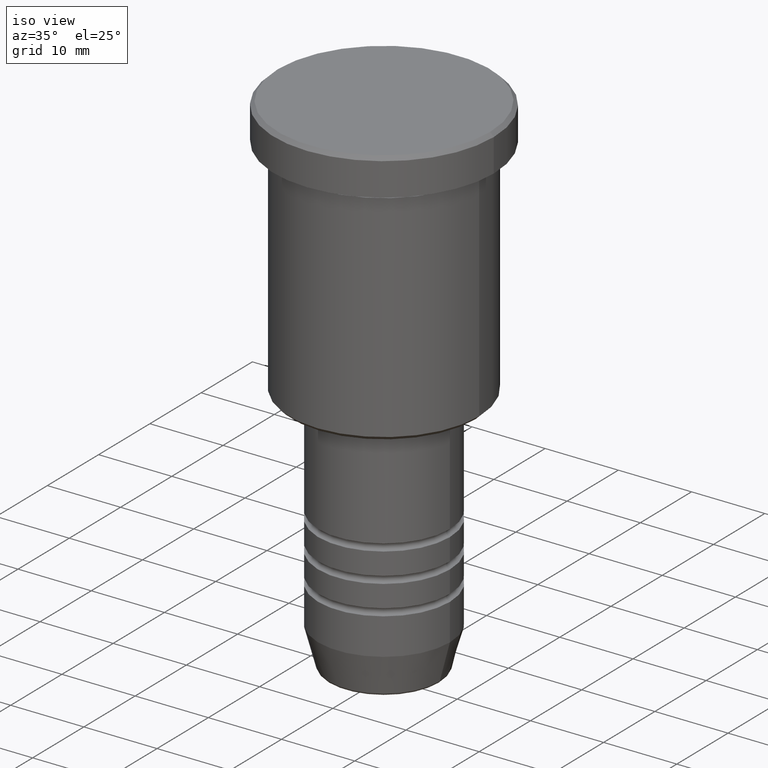
[diagram: clean part render]
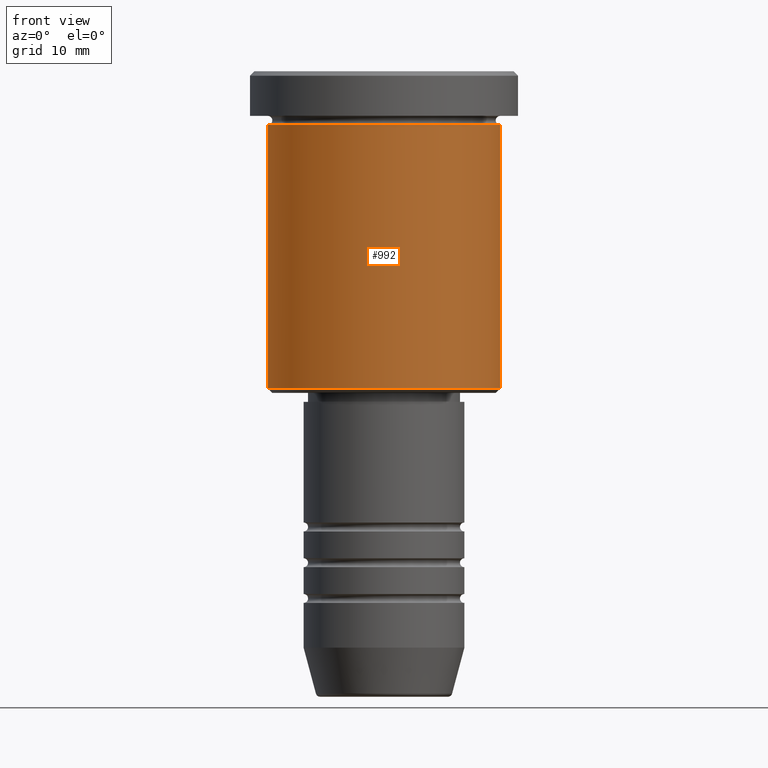
[diagram: tour spotlight — one face highlighted and labeled with its STEP entity id]
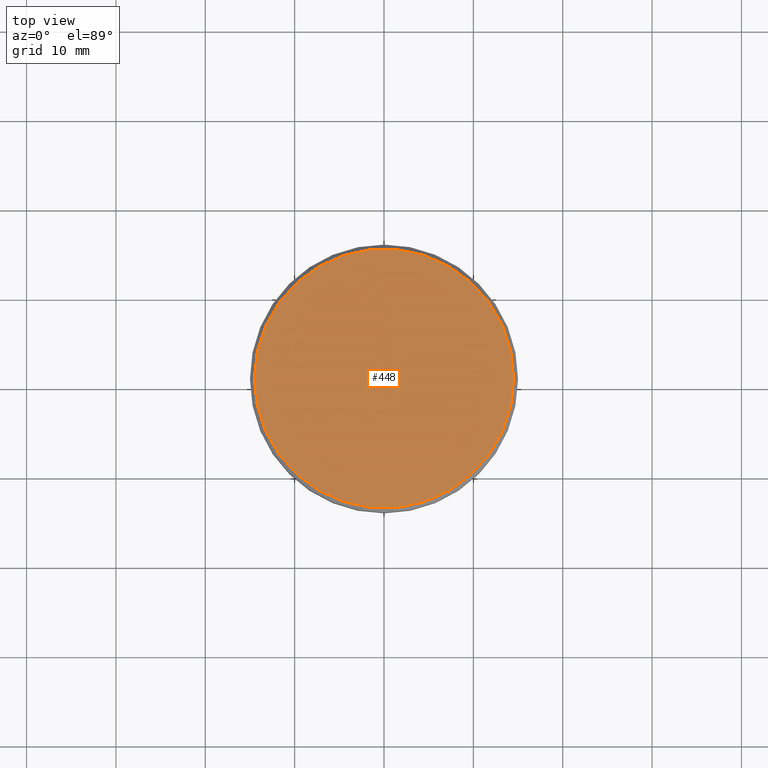
[diagram: tour spotlight — one face highlighted and labeled with its STEP entity id]
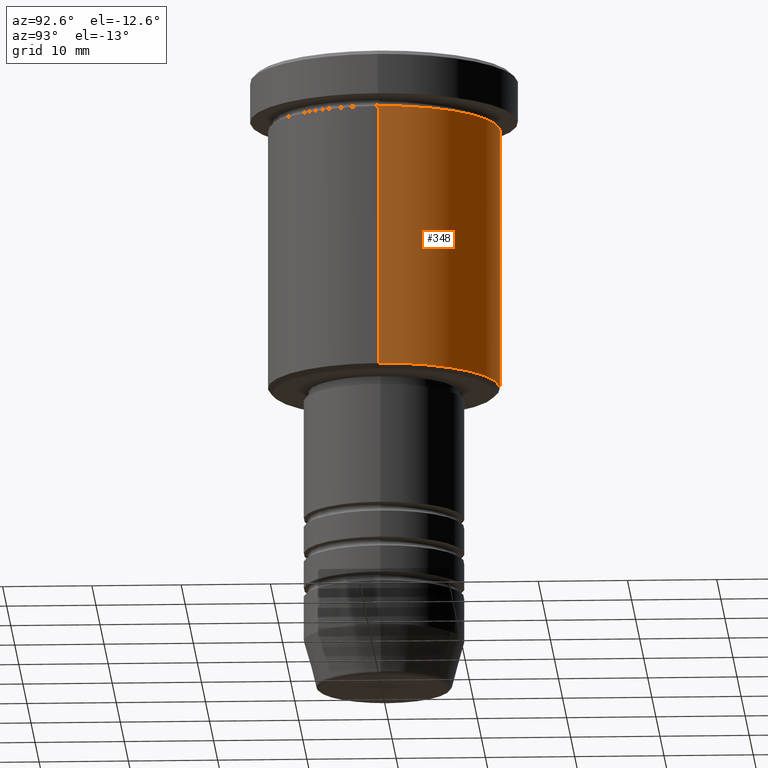
[diagram: tour spotlight — one face highlighted and labeled with its STEP entity id]
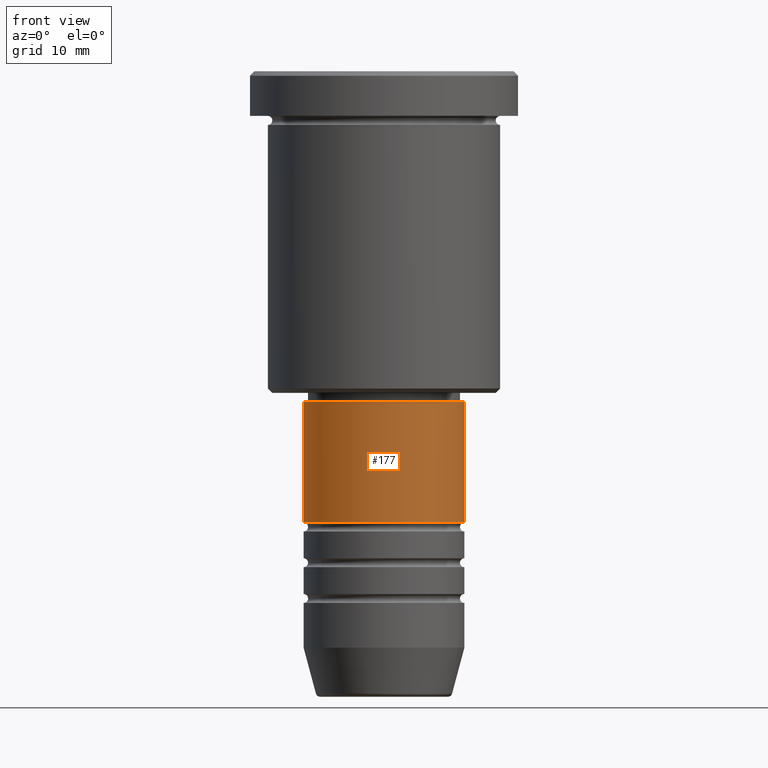
[diagram: tour spotlight — one face highlighted and labeled with its STEP entity id]
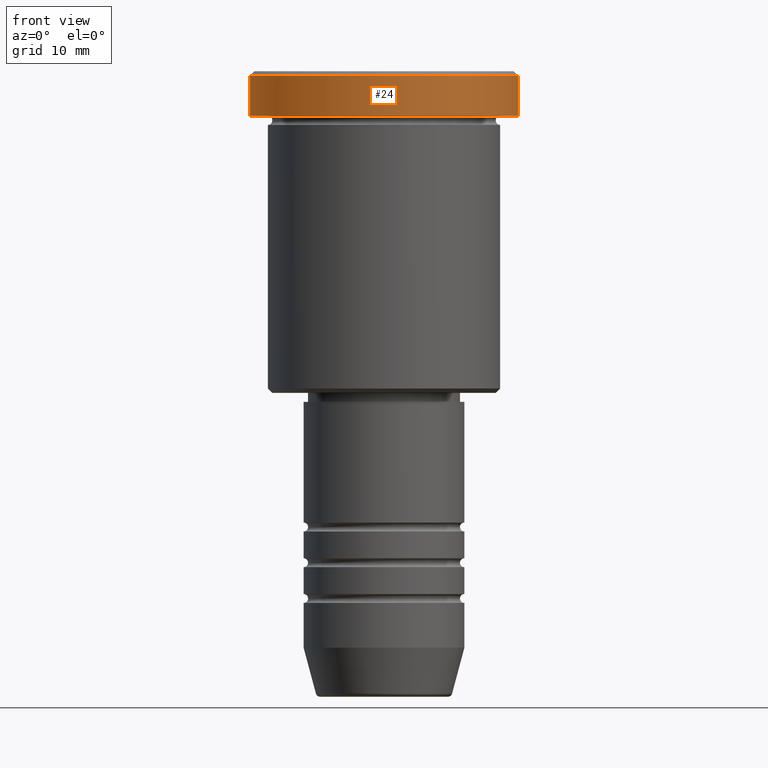
[diagram: tour spotlight — one face highlighted and labeled with its STEP entity id]
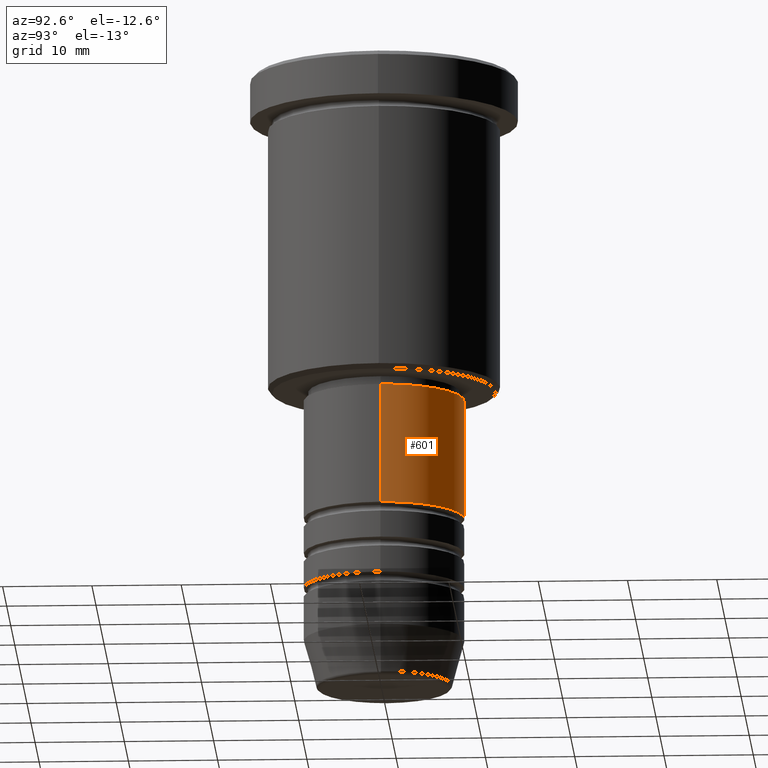
[diagram: tour spotlight — one face highlighted and labeled with its STEP entity id]
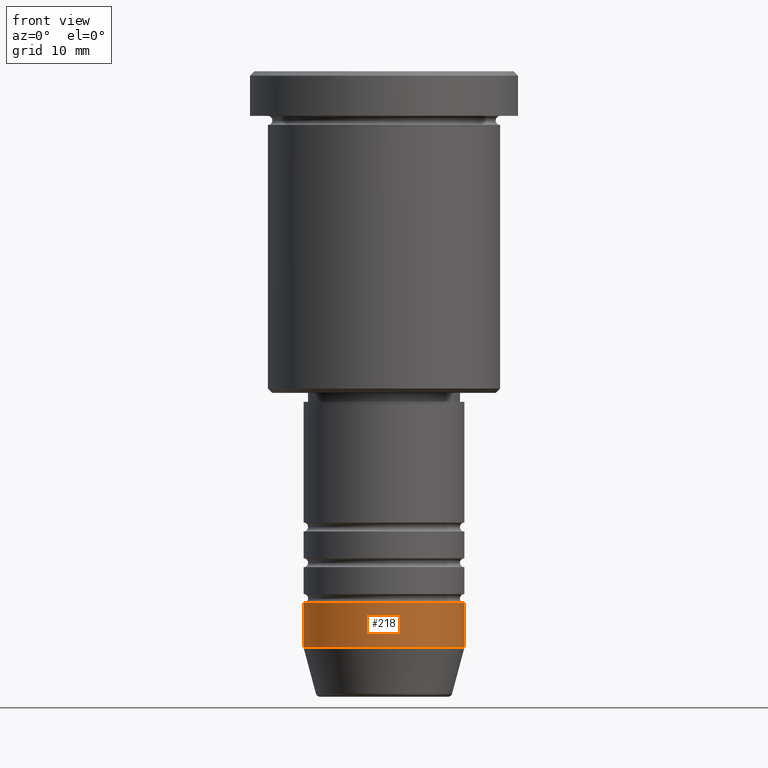
[diagram: tour spotlight — one face highlighted and labeled with its STEP entity id]
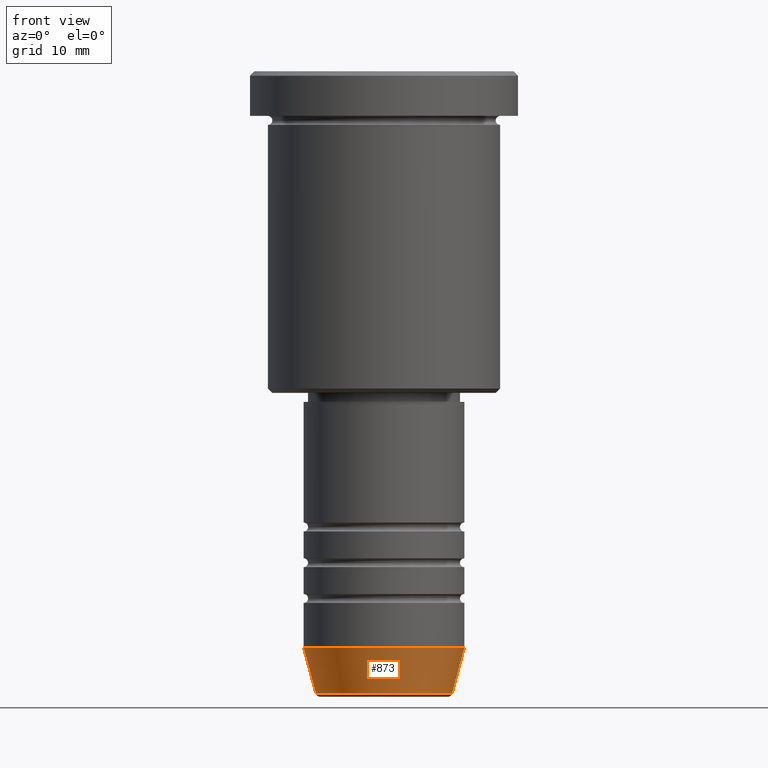
[diagram: tour spotlight — one face highlighted and labeled with its STEP entity id]
A machine part: a face-by-face anatomy tour. The part has 43 B-rep faces; the first image is the clean iso view, then the 8 largest visible faces are spotlighted one at a time (largest first), each with its STEP entity span.

Face 1 — front view, entity #992. In plain terms, the highlighted cylindrical surface (partial cylindrical patch) has radius 13 mm, axis along (-0, -0, 1).
Definition (entity closure, byte-faithful):
#10 = DIRECTION ( 'NONE',  ( -0.000000000000000000, -0.000000000000000000, 1.000000000000000000 ) ) ;
#22 = LINE ( 'NONE', #670, #747 ) ;
#48 = CIRCLE ( 'NONE', #1077, 13.00000000000000178 ) ;
#55 = DIRECTION ( 'NONE',  ( -0.000000000000000000, -0.000000000000000000, 1.000000000000000000 ) ) ;
#130 = ORIENTED_EDGE ( 'NONE', *, *, #957, .F. ) ;
#199 = ORIENTED_EDGE ( 'NONE', *, *, #239, .T. ) ;
#231 = ORIENTED_EDGE ( 'NONE', *, *, #410, .F. ) ;
#239 = EDGE_CURVE ( 'NONE', #1101, #928, #827, .T. ) ;
#296 = CIRCLE ( 'NONE', #623, 13.00000000000000178 ) ;
#318 = DIRECTION ( 'NONE',  ( -0.000000000000000000, -0.000000000000000000, 1.000000000000000000 ) ) ;
#384 = CARTESIAN_POINT ( 'NONE',  ( 13.00000000000000178, 0.000000000000000000, 0.000000000000000000 ) ) ;
#410 = EDGE_CURVE ( 'NONE', #558, #1067, #22, .T. ) ;
#473 = EDGE_LOOP ( 'NONE', ( #231, #705, #199, #130 ) ) ;
#558 = VERTEX_POINT ( 'NONE', #792 ) ;
#606 = AXIS2_PLACEMENT_3D ( 'NONE', #702, #889, #977 ) ;
#614 = CARTESIAN_POINT ( 'NONE',  ( -13.00000000000000178, 1.592040838891559293E-15, -5.999999999999999112 ) ) ;
#623 = AXIS2_PLACEMENT_3D ( 'NONE', #1041, #1038, #663 ) ;
#657 = CARTESIAN_POINT ( 'NONE',  ( 13.00000000000000178, 0.000000000000000000, -5.999999999999999112 ) ) ;
#663 = DIRECTION ( 'NONE',  ( -1.000000000000000000, 0.000000000000000000, 0.000000000000000000 ) ) ;
#670 = CARTESIAN_POINT ( 'NONE',  ( -13.00000000000000178, 1.592040838891559293E-15, 0.000000000000000000 ) ) ;
#702 = CARTESIAN_POINT ( 'NONE',  ( 0.000000000000000000, 0.000000000000000000, 0.000000000000000000 ) ) ;
#705 = ORIENTED_EDGE ( 'NONE', *, *, #896, .T. ) ;
#706 = FACE_OUTER_BOUND ( 'NONE', #473, .T. ) ;
#732 = CARTESIAN_POINT ( 'NONE',  ( 13.00000000000000178, 0.000000000000000000, -35.50000000000000000 ) ) ;
#747 = VECTOR ( 'NONE', #318, 1000.000000000000000 ) ;
#792 = CARTESIAN_POINT ( 'NONE',  ( -13.00000000000000178, 1.592040838891559293E-15, -35.50000000000000000 ) ) ;
#827 = LINE ( 'NONE', #384, #1089 ) ;
#889 = DIRECTION ( 'NONE',  ( -0.000000000000000000, -0.000000000000000000, 1.000000000000000000 ) ) ;
#896 = EDGE_CURVE ( 'NONE', #558, #1101, #296, .T. ) ;
#928 = VERTEX_POINT ( 'NONE', #657 ) ;
#957 = EDGE_CURVE ( 'NONE', #1067, #928, #48, .T. ) ;
#977 = DIRECTION ( 'NONE',  ( 1.000000000000000000, 0.000000000000000000, 0.000000000000000000 ) ) ;
#992 = ADVANCED_FACE ( 'NONE', ( #706 ), #1143, .T. ) ;
#1038 = DIRECTION ( 'NONE',  ( -0.000000000000000000, -0.000000000000000000, 1.000000000000000000 ) ) ;
#1041 = CARTESIAN_POINT ( 'NONE',  ( 0.000000000000000000, 0.000000000000000000, -35.50000000000000000 ) ) ;
#1066 = DIRECTION ( 'NONE',  ( 1.000000000000000000, 0.000000000000000000, 0.000000000000000000 ) ) ;
#1067 = VERTEX_POINT ( 'NONE', #614 ) ;
#1077 = AXIS2_PLACEMENT_3D ( 'NONE', #1162, #55, #1066 ) ;
#1089 = VECTOR ( 'NONE', #10, 1000.000000000000000 ) ;
#1101 = VERTEX_POINT ( 'NONE', #732 ) ;
#1143 = CYLINDRICAL_SURFACE ( 'NONE', #606, 13.00000000000000178 ) ;
#1162 = CARTESIAN_POINT ( 'NONE',  ( 0.000000000000000000, 0.000000000000000000, -5.999999999999999112 ) ) ;

Face 2 — top view, entity #448. In plain terms, the highlighted planar face has unit normal (0, -0, 1).
Definition (entity closure, byte-faithful):
#13 = EDGE_CURVE ( 'NONE', #862, #880, #1130, .T. ) ;
#135 = CARTESIAN_POINT ( 'NONE',  ( 0.000000000000000000, 0.000000000000000000, 0.000000000000000000 ) ) ;
#140 = FACE_OUTER_BOUND ( 'NONE', #533, .T. ) ;
#174 = AXIS2_PLACEMENT_3D ( 'NONE', #492, #1121, #582 ) ;
#214 = ORIENTED_EDGE ( 'NONE', *, *, #13, .T. ) ;
#323 = CARTESIAN_POINT ( 'NONE',  ( -14.50000000000001066, 0.000000000000000000, 0.000000000000000000 ) ) ;
#397 = DIRECTION ( 'NONE',  ( 1.000000000000000000, 0.000000000000000000, 0.000000000000000000 ) ) ;
#427 = EDGE_CURVE ( 'NONE', #880, #862, #879, .T. ) ;
#448 = ADVANCED_FACE ( 'NONE', ( #140 ), #503, .T. ) ;
#466 = AXIS2_PLACEMENT_3D ( 'NONE', #599, #581, #397 ) ;
#492 = CARTESIAN_POINT ( 'NONE',  ( 0.000000000000000000, 0.000000000000000000, 0.000000000000000000 ) ) ;
#503 = PLANE ( 'NONE',  #822 ) ;
#513 = ORIENTED_EDGE ( 'NONE', *, *, #427, .T. ) ;
#533 = EDGE_LOOP ( 'NONE', ( #513, #214 ) ) ;
#581 = DIRECTION ( 'NONE',  ( -0.000000000000000000, -0.000000000000000000, 1.000000000000000000 ) ) ;
#582 = DIRECTION ( 'NONE',  ( 1.000000000000000000, 0.000000000000000000, 0.000000000000000000 ) ) ;
#599 = CARTESIAN_POINT ( 'NONE',  ( 0.000000000000000000, 0.000000000000000000, 0.000000000000000000 ) ) ;
#822 = AXIS2_PLACEMENT_3D ( 'NONE', #135, #943, #1042 ) ;
#845 = CARTESIAN_POINT ( 'NONE',  ( 14.50000000000001066, 1.806354028742346591E-15, 0.000000000000000000 ) ) ;
#862 = VERTEX_POINT ( 'NONE', #845 ) ;
#879 = CIRCLE ( 'NONE', #466, 14.50000000000001066 ) ;
#880 = VERTEX_POINT ( 'NONE', #323 ) ;
#943 = DIRECTION ( 'NONE',  ( 0.000000000000000000, -0.000000000000000000, 1.000000000000000000 ) ) ;
#1042 = DIRECTION ( 'NONE',  ( 1.000000000000000000, 0.000000000000000000, 0.000000000000000000 ) ) ;
#1121 = DIRECTION ( 'NONE',  ( -0.000000000000000000, -0.000000000000000000, 1.000000000000000000 ) ) ;
#1130 = CIRCLE ( 'NONE', #174, 14.50000000000001066 ) ;

Face 3 — auxiliary view, entity #348. In plain terms, the highlighted cylindrical surface (partial cylindrical patch) has radius 13 mm, axis along (-0, -0, 1).
Definition (entity closure, byte-faithful):
#10 = DIRECTION ( 'NONE',  ( -0.000000000000000000, -0.000000000000000000, 1.000000000000000000 ) ) ;
#22 = LINE ( 'NONE', #670, #747 ) ;
#118 = DIRECTION ( 'NONE',  ( -0.000000000000000000, -0.000000000000000000, 1.000000000000000000 ) ) ;
#162 = ORIENTED_EDGE ( 'NONE', *, *, #410, .T. ) ;
#189 = DIRECTION ( 'NONE',  ( -0.000000000000000000, -0.000000000000000000, 1.000000000000000000 ) ) ;
#220 = CIRCLE ( 'NONE', #454, 13.00000000000000178 ) ;
#238 = CIRCLE ( 'NONE', #1134, 13.00000000000000178 ) ;
#239 = EDGE_CURVE ( 'NONE', #1101, #928, #827, .T. ) ;
#241 = DIRECTION ( 'NONE',  ( -1.000000000000000000, 0.000000000000000000, 0.000000000000000000 ) ) ;
#292 = AXIS2_PLACEMENT_3D ( 'NONE', #367, #1112, #464 ) ;
#318 = DIRECTION ( 'NONE',  ( -0.000000000000000000, -0.000000000000000000, 1.000000000000000000 ) ) ;
#348 = ADVANCED_FACE ( 'NONE', ( #908 ), #728, .T. ) ;
#367 = CARTESIAN_POINT ( 'NONE',  ( 0.000000000000000000, 0.000000000000000000, 0.000000000000000000 ) ) ;
#384 = CARTESIAN_POINT ( 'NONE',  ( 13.00000000000000178, 0.000000000000000000, 0.000000000000000000 ) ) ;
#410 = EDGE_CURVE ( 'NONE', #558, #1067, #22, .T. ) ;
#454 = AXIS2_PLACEMENT_3D ( 'NONE', #580, #118, #241 ) ;
#456 = CARTESIAN_POINT ( 'NONE',  ( 0.000000000000000000, 0.000000000000000000, -5.999999999999999112 ) ) ;
#464 = DIRECTION ( 'NONE',  ( 1.000000000000000000, 0.000000000000000000, 0.000000000000000000 ) ) ;
#558 = VERTEX_POINT ( 'NONE', #792 ) ;
#580 = CARTESIAN_POINT ( 'NONE',  ( 0.000000000000000000, 0.000000000000000000, -35.50000000000000000 ) ) ;
#614 = CARTESIAN_POINT ( 'NONE',  ( -13.00000000000000178, 1.592040838891559293E-15, -5.999999999999999112 ) ) ;
#624 = ORIENTED_EDGE ( 'NONE', *, *, #700, .F. ) ;
#646 = DIRECTION ( 'NONE',  ( 1.000000000000000000, 0.000000000000000000, 0.000000000000000000 ) ) ;
#657 = CARTESIAN_POINT ( 'NONE',  ( 13.00000000000000178, 0.000000000000000000, -5.999999999999999112 ) ) ;
#670 = CARTESIAN_POINT ( 'NONE',  ( -13.00000000000000178, 1.592040838891559293E-15, 0.000000000000000000 ) ) ;
#700 = EDGE_CURVE ( 'NONE', #928, #1067, #238, .T. ) ;
#728 = CYLINDRICAL_SURFACE ( 'NONE', #292, 13.00000000000000178 ) ;
#732 = CARTESIAN_POINT ( 'NONE',  ( 13.00000000000000178, 0.000000000000000000, -35.50000000000000000 ) ) ;
#747 = VECTOR ( 'NONE', #318, 1000.000000000000000 ) ;
#792 = CARTESIAN_POINT ( 'NONE',  ( -13.00000000000000178, 1.592040838891559293E-15, -35.50000000000000000 ) ) ;
#827 = LINE ( 'NONE', #384, #1089 ) ;
#905 = EDGE_LOOP ( 'NONE', ( #1118, #162, #624, #1082 ) ) ;
#908 = FACE_OUTER_BOUND ( 'NONE', #905, .T. ) ;
#928 = VERTEX_POINT ( 'NONE', #657 ) ;
#933 = EDGE_CURVE ( 'NONE', #1101, #558, #220, .T. ) ;
#1067 = VERTEX_POINT ( 'NONE', #614 ) ;
#1082 = ORIENTED_EDGE ( 'NONE', *, *, #239, .F. ) ;
#1089 = VECTOR ( 'NONE', #10, 1000.000000000000000 ) ;
#1101 = VERTEX_POINT ( 'NONE', #732 ) ;
#1112 = DIRECTION ( 'NONE',  ( -0.000000000000000000, -0.000000000000000000, 1.000000000000000000 ) ) ;
#1118 = ORIENTED_EDGE ( 'NONE', *, *, #933, .T. ) ;
#1134 = AXIS2_PLACEMENT_3D ( 'NONE', #456, #189, #646 ) ;

Face 4 — front view, entity #177. In plain terms, the highlighted cylindrical surface (partial cylindrical patch) has radius 9 mm, axis along (-0, -0, 1).
Definition (entity closure, byte-faithful):
#99 = VECTOR ( 'NONE', #785, 1000.000000000000000 ) ;
#154 = CARTESIAN_POINT ( 'NONE',  ( 0.000000000000000000, 0.000000000000000000, 0.000000000000000000 ) ) ;
#159 = CYLINDRICAL_SURFACE ( 'NONE', #836, 9.000000000000000000 ) ;
#177 = ADVANCED_FACE ( 'NONE', ( #891 ), #159, .T. ) ;
#191 = EDGE_CURVE ( 'NONE', #499, #1070, #768, .T. ) ;
#192 = ORIENTED_EDGE ( 'NONE', *, *, #380, .F. ) ;
#219 = DIRECTION ( 'NONE',  ( 1.000000000000000000, 0.000000000000000000, 0.000000000000000000 ) ) ;
#301 = ORIENTED_EDGE ( 'NONE', *, *, #608, .F. ) ;
#334 = AXIS2_PLACEMENT_3D ( 'NONE', #364, #446, #719 ) ;
#336 = DIRECTION ( 'NONE',  ( -0.000000000000000000, -0.000000000000000000, 1.000000000000000000 ) ) ;
#350 = DIRECTION ( 'NONE',  ( 1.000000000000000000, 0.000000000000000000, 0.000000000000000000 ) ) ;
#364 = CARTESIAN_POINT ( 'NONE',  ( 0.000000000000000000, 0.000000000000000000, -50.49999999999999289 ) ) ;
#380 = EDGE_CURVE ( 'NONE', #1105, #941, #1011, .T. ) ;
#446 = DIRECTION ( 'NONE',  ( -0.000000000000000000, -0.000000000000000000, 1.000000000000000000 ) ) ;
#482 = ORIENTED_EDGE ( 'NONE', *, *, #191, .T. ) ;
#490 = LINE ( 'NONE', #1063, #99 ) ;
#499 = VERTEX_POINT ( 'NONE', #1026 ) ;
#519 = EDGE_CURVE ( 'NONE', #1070, #941, #490, .T. ) ;
#593 = DIRECTION ( 'NONE',  ( -0.000000000000000000, -0.000000000000000000, 1.000000000000000000 ) ) ;
#605 = CARTESIAN_POINT ( 'NONE',  ( -9.000000000000000000, 1.102182119232617714E-15, 0.000000000000000000 ) ) ;
#608 = EDGE_CURVE ( 'NONE', #499, #1105, #1144, .T. ) ;
#617 = ORIENTED_EDGE ( 'NONE', *, *, #519, .T. ) ;
#719 = DIRECTION ( 'NONE',  ( 1.000000000000000000, 0.000000000000000000, 0.000000000000000000 ) ) ;
#768 = CIRCLE ( 'NONE', #334, 9.000000000000001776 ) ;
#785 = DIRECTION ( 'NONE',  ( -0.000000000000000000, -0.000000000000000000, 1.000000000000000000 ) ) ;
#797 = DIRECTION ( 'NONE',  ( -0.000000000000000000, -0.000000000000000000, 1.000000000000000000 ) ) ;
#807 = AXIS2_PLACEMENT_3D ( 'NONE', #930, #593, #219 ) ;
#836 = AXIS2_PLACEMENT_3D ( 'NONE', #154, #797, #350 ) ;
#844 = EDGE_LOOP ( 'NONE', ( #301, #482, #617, #192 ) ) ;
#891 = FACE_OUTER_BOUND ( 'NONE', #844, .T. ) ;
#930 = CARTESIAN_POINT ( 'NONE',  ( 0.000000000000000000, 0.000000000000000000, -37.00000000000000711 ) ) ;
#941 = VERTEX_POINT ( 'NONE', #960 ) ;
#960 = CARTESIAN_POINT ( 'NONE',  ( 8.999999999999998224, 0.000000000000000000, -37.00000000000000711 ) ) ;
#969 = CARTESIAN_POINT ( 'NONE',  ( 9.000000000000001776, 0.000000000000000000, -50.49999999999999289 ) ) ;
#1011 = CIRCLE ( 'NONE', #807, 8.999999999999998224 ) ;
#1026 = CARTESIAN_POINT ( 'NONE',  ( -9.000000000000001776, 1.102182119232617911E-15, -50.49999999999999289 ) ) ;
#1063 = CARTESIAN_POINT ( 'NONE',  ( 9.000000000000000000, 0.000000000000000000, 0.000000000000000000 ) ) ;
#1070 = VERTEX_POINT ( 'NONE', #969 ) ;
#1090 = VECTOR ( 'NONE', #336, 1000.000000000000000 ) ;
#1095 = CARTESIAN_POINT ( 'NONE',  ( -8.999999999999998224, 1.102182119232617714E-15, -37.00000000000000711 ) ) ;
#1105 = VERTEX_POINT ( 'NONE', #1095 ) ;
#1144 = LINE ( 'NONE', #605, #1090 ) ;

Face 5 — front view, entity #24. In plain terms, the highlighted cylindrical surface (partial cylindrical patch) has radius 15 mm, axis along (-0, -0, 1).
Definition (entity closure, byte-faithful):
#24 = ADVANCED_FACE ( 'NONE', ( #938 ), #860, .T. ) ;
#32 = EDGE_LOOP ( 'NONE', ( #419, #34, #418, #824 ) ) ;
#34 = ORIENTED_EDGE ( 'NONE', *, *, #885, .T. ) ;
#58 = CARTESIAN_POINT ( 'NONE',  ( -15.00000000000000000, 1.836970198721029589E-15, -4.999999999999999112 ) ) ;
#92 = EDGE_CURVE ( 'NONE', #106, #951, #165, .T. ) ;
#106 = VERTEX_POINT ( 'NONE', #58 ) ;
#136 = DIRECTION ( 'NONE',  ( 1.000000000000000000, 0.000000000000000000, 0.000000000000000000 ) ) ;
#165 = LINE ( 'NONE', #252, #1170 ) ;
#194 = VECTOR ( 'NONE', #1140, 1000.000000000000000 ) ;
#252 = CARTESIAN_POINT ( 'NONE',  ( -15.00000000000000000, 1.836970198721029589E-15, 0.000000000000000000 ) ) ;
#253 = AXIS2_PLACEMENT_3D ( 'NONE', #890, #703, #515 ) ;
#257 = VERTEX_POINT ( 'NONE', #371 ) ;
#264 = DIRECTION ( 'NONE',  ( -0.000000000000000000, -0.000000000000000000, 1.000000000000000000 ) ) ;
#295 = CARTESIAN_POINT ( 'NONE',  ( 0.000000000000000000, 0.000000000000000000, -4.999999999999999112 ) ) ;
#302 = DIRECTION ( 'NONE',  ( -0.000000000000000000, -0.000000000000000000, 1.000000000000000000 ) ) ;
#311 = DIRECTION ( 'NONE',  ( -0.000000000000000000, -0.000000000000000000, 1.000000000000000000 ) ) ;
#371 = CARTESIAN_POINT ( 'NONE',  ( 15.00000000000000000, 0.000000000000000000, -4.999999999999999112 ) ) ;
#407 = CARTESIAN_POINT ( 'NONE',  ( 15.00000000000000000, 0.000000000000000000, 0.000000000000000000 ) ) ;
#418 = ORIENTED_EDGE ( 'NONE', *, *, #421, .T. ) ;
#419 = ORIENTED_EDGE ( 'NONE', *, *, #92, .F. ) ;
#421 = EDGE_CURVE ( 'NONE', #257, #1040, #574, .T. ) ;
#470 = AXIS2_PLACEMENT_3D ( 'NONE', #295, #302, #1129 ) ;
#489 = CIRCLE ( 'NONE', #470, 15.00000000000000000 ) ;
#515 = DIRECTION ( 'NONE',  ( 1.000000000000000000, 0.000000000000000000, 0.000000000000000000 ) ) ;
#537 = EDGE_CURVE ( 'NONE', #1040, #951, #673, .T. ) ;
#574 = LINE ( 'NONE', #407, #194 ) ;
#673 = CIRCLE ( 'NONE', #253, 15.00000000000000000 ) ;
#703 = DIRECTION ( 'NONE',  ( 0.000000000000000000, 0.000000000000000000, -1.000000000000000000 ) ) ;
#824 = ORIENTED_EDGE ( 'NONE', *, *, #537, .T. ) ;
#849 = CARTESIAN_POINT ( 'NONE',  ( 0.000000000000000000, 0.000000000000000000, 0.000000000000000000 ) ) ;
#860 = CYLINDRICAL_SURFACE ( 'NONE', #1049, 15.00000000000000000 ) ;
#868 = CARTESIAN_POINT ( 'NONE',  ( -15.00000000000000000, 1.836970198721029589E-15, -0.4999999999999900080 ) ) ;
#885 = EDGE_CURVE ( 'NONE', #106, #257, #489, .T. ) ;
#890 = CARTESIAN_POINT ( 'NONE',  ( 0.000000000000000000, 0.000000000000000000, -0.4999999999999900080 ) ) ;
#938 = FACE_OUTER_BOUND ( 'NONE', #32, .T. ) ;
#951 = VERTEX_POINT ( 'NONE', #868 ) ;
#1040 = VERTEX_POINT ( 'NONE', #1055 ) ;
#1049 = AXIS2_PLACEMENT_3D ( 'NONE', #849, #311, #136 ) ;
#1055 = CARTESIAN_POINT ( 'NONE',  ( 15.00000000000000000, 0.000000000000000000, -0.4999999999999900080 ) ) ;
#1129 = DIRECTION ( 'NONE',  ( 1.000000000000000000, 0.000000000000000000, 0.000000000000000000 ) ) ;
#1140 = DIRECTION ( 'NONE',  ( -0.000000000000000000, -0.000000000000000000, 1.000000000000000000 ) ) ;
#1170 = VECTOR ( 'NONE', #264, 1000.000000000000000 ) ;

Face 6 — auxiliary view, entity #601. In plain terms, the highlighted cylindrical surface (partial cylindrical patch) has radius 9 mm, axis along (-0, -0, 1).
Definition (entity closure, byte-faithful):
#52 = DIRECTION ( 'NONE',  ( -0.000000000000000000, -0.000000000000000000, 1.000000000000000000 ) ) ;
#61 = FACE_OUTER_BOUND ( 'NONE', #167, .T. ) ;
#78 = CYLINDRICAL_SURFACE ( 'NONE', #453, 9.000000000000000000 ) ;
#99 = VECTOR ( 'NONE', #785, 1000.000000000000000 ) ;
#101 = DIRECTION ( 'NONE',  ( -0.000000000000000000, -0.000000000000000000, 1.000000000000000000 ) ) ;
#143 = AXIS2_PLACEMENT_3D ( 'NONE', #172, #101, #1097 ) ;
#167 = EDGE_LOOP ( 'NONE', ( #1133, #439, #405, #586 ) ) ;
#172 = CARTESIAN_POINT ( 'NONE',  ( 0.000000000000000000, 0.000000000000000000, -50.49999999999999289 ) ) ;
#175 = CIRCLE ( 'NONE', #620, 8.999999999999998224 ) ;
#250 = CARTESIAN_POINT ( 'NONE',  ( 0.000000000000000000, 0.000000000000000000, 0.000000000000000000 ) ) ;
#297 = DIRECTION ( 'NONE',  ( 1.000000000000000000, 0.000000000000000000, 0.000000000000000000 ) ) ;
#303 = CARTESIAN_POINT ( 'NONE',  ( 0.000000000000000000, 0.000000000000000000, -37.00000000000000711 ) ) ;
#336 = DIRECTION ( 'NONE',  ( -0.000000000000000000, -0.000000000000000000, 1.000000000000000000 ) ) ;
#405 = ORIENTED_EDGE ( 'NONE', *, *, #498, .F. ) ;
#439 = ORIENTED_EDGE ( 'NONE', *, *, #608, .T. ) ;
#453 = AXIS2_PLACEMENT_3D ( 'NONE', #250, #621, #980 ) ;
#490 = LINE ( 'NONE', #1063, #99 ) ;
#498 = EDGE_CURVE ( 'NONE', #941, #1105, #175, .T. ) ;
#499 = VERTEX_POINT ( 'NONE', #1026 ) ;
#519 = EDGE_CURVE ( 'NONE', #1070, #941, #490, .T. ) ;
#586 = ORIENTED_EDGE ( 'NONE', *, *, #519, .F. ) ;
#601 = ADVANCED_FACE ( 'NONE', ( #61 ), #78, .T. ) ;
#605 = CARTESIAN_POINT ( 'NONE',  ( -9.000000000000000000, 1.102182119232617714E-15, 0.000000000000000000 ) ) ;
#608 = EDGE_CURVE ( 'NONE', #499, #1105, #1144, .T. ) ;
#620 = AXIS2_PLACEMENT_3D ( 'NONE', #303, #52, #297 ) ;
#621 = DIRECTION ( 'NONE',  ( -0.000000000000000000, -0.000000000000000000, 1.000000000000000000 ) ) ;
#634 = CIRCLE ( 'NONE', #143, 9.000000000000001776 ) ;
#744 = EDGE_CURVE ( 'NONE', #1070, #499, #634, .T. ) ;
#785 = DIRECTION ( 'NONE',  ( -0.000000000000000000, -0.000000000000000000, 1.000000000000000000 ) ) ;
#941 = VERTEX_POINT ( 'NONE', #960 ) ;
#960 = CARTESIAN_POINT ( 'NONE',  ( 8.999999999999998224, 0.000000000000000000, -37.00000000000000711 ) ) ;
#969 = CARTESIAN_POINT ( 'NONE',  ( 9.000000000000001776, 0.000000000000000000, -50.49999999999999289 ) ) ;
#980 = DIRECTION ( 'NONE',  ( 1.000000000000000000, 0.000000000000000000, 0.000000000000000000 ) ) ;
#1026 = CARTESIAN_POINT ( 'NONE',  ( -9.000000000000001776, 1.102182119232617911E-15, -50.49999999999999289 ) ) ;
#1063 = CARTESIAN_POINT ( 'NONE',  ( 9.000000000000000000, 0.000000000000000000, 0.000000000000000000 ) ) ;
#1070 = VERTEX_POINT ( 'NONE', #969 ) ;
#1090 = VECTOR ( 'NONE', #336, 1000.000000000000000 ) ;
#1095 = CARTESIAN_POINT ( 'NONE',  ( -8.999999999999998224, 1.102182119232617714E-15, -37.00000000000000711 ) ) ;
#1097 = DIRECTION ( 'NONE',  ( 1.000000000000000000, 0.000000000000000000, 0.000000000000000000 ) ) ;
#1105 = VERTEX_POINT ( 'NONE', #1095 ) ;
#1133 = ORIENTED_EDGE ( 'NONE', *, *, #744, .T. ) ;
#1144 = LINE ( 'NONE', #605, #1090 ) ;

Face 7 — front view, entity #218. In plain terms, the highlighted cylindrical surface (partial cylindrical patch) has radius 9 mm, axis along (-0, -0, 1).
Definition (entity closure, byte-faithful):
#39 = ORIENTED_EDGE ( 'NONE', *, *, #813, .F. ) ;
#67 = ORIENTED_EDGE ( 'NONE', *, *, #864, .F. ) ;
#91 = CYLINDRICAL_SURFACE ( 'NONE', #483, 9.000000000000001776 ) ;
#127 = DIRECTION ( 'NONE',  ( -0.000000000000000000, -0.000000000000000000, 1.000000000000000000 ) ) ;
#161 = VECTOR ( 'NONE', #203, 1000.000000000000000 ) ;
#202 = VERTEX_POINT ( 'NONE', #436 ) ;
#203 = DIRECTION ( 'NONE',  ( -0.000000000000000000, -0.000000000000000000, 1.000000000000000000 ) ) ;
#218 = ADVANCED_FACE ( 'NONE', ( #616 ), #91, .T. ) ;
#236 = AXIS2_PLACEMENT_3D ( 'NONE', #1125, #481, #766 ) ;
#400 = CARTESIAN_POINT ( 'NONE',  ( -9.000000000000001776, 1.102182119232617911E-15, 0.000000000000000000 ) ) ;
#436 = CARTESIAN_POINT ( 'NONE',  ( -9.000000000000000000, 1.102182119232617714E-15, -59.50000000000000711 ) ) ;
#438 = EDGE_CURVE ( 'NONE', #853, #1147, #1033, .T. ) ;
#469 = CARTESIAN_POINT ( 'NONE',  ( 9.000000000000001776, 0.000000000000000000, -64.50000000000000000 ) ) ;
#476 = CARTESIAN_POINT ( 'NONE',  ( -9.000000000000001776, 1.102182119232617911E-15, -64.50000000000000000 ) ) ;
#481 = DIRECTION ( 'NONE',  ( -0.000000000000000000, -0.000000000000000000, 1.000000000000000000 ) ) ;
#483 = AXIS2_PLACEMENT_3D ( 'NONE', #1104, #639, #633 ) ;
#566 = ORIENTED_EDGE ( 'NONE', *, *, #438, .T. ) ;
#571 = ORIENTED_EDGE ( 'NONE', *, *, #801, .T. ) ;
#587 = DIRECTION ( 'NONE',  ( 1.000000000000000000, 0.000000000000000000, 0.000000000000000000 ) ) ;
#592 = CARTESIAN_POINT ( 'NONE',  ( 9.000000000000001776, 0.000000000000000000, 0.000000000000000000 ) ) ;
#598 = CARTESIAN_POINT ( 'NONE',  ( 9.000000000000000000, 0.000000000000000000, -59.50000000000000711 ) ) ;
#616 = FACE_OUTER_BOUND ( 'NONE', #1165, .T. ) ;
#633 = DIRECTION ( 'NONE',  ( 1.000000000000000000, 0.000000000000000000, 0.000000000000000000 ) ) ;
#639 = DIRECTION ( 'NONE',  ( -0.000000000000000000, -0.000000000000000000, 1.000000000000000000 ) ) ;
#675 = AXIS2_PLACEMENT_3D ( 'NONE', #942, #1019, #587 ) ;
#766 = DIRECTION ( 'NONE',  ( 1.000000000000000000, 0.000000000000000000, 0.000000000000000000 ) ) ;
#771 = VECTOR ( 'NONE', #127, 1000.000000000000000 ) ;
#775 = LINE ( 'NONE', #400, #161 ) ;
#801 = EDGE_CURVE ( 'NONE', #1147, #920, #935, .T. ) ;
#813 = EDGE_CURVE ( 'NONE', #202, #920, #918, .T. ) ;
#853 = VERTEX_POINT ( 'NONE', #476 ) ;
#864 = EDGE_CURVE ( 'NONE', #853, #202, #775, .T. ) ;
#918 = CIRCLE ( 'NONE', #675, 9.000000000000000000 ) ;
#920 = VERTEX_POINT ( 'NONE', #598 ) ;
#935 = LINE ( 'NONE', #592, #771 ) ;
#942 = CARTESIAN_POINT ( 'NONE',  ( 0.000000000000000000, 0.000000000000000000, -59.50000000000000711 ) ) ;
#1019 = DIRECTION ( 'NONE',  ( -0.000000000000000000, -0.000000000000000000, 1.000000000000000000 ) ) ;
#1033 = CIRCLE ( 'NONE', #236, 9.000000000000001776 ) ;
#1104 = CARTESIAN_POINT ( 'NONE',  ( 0.000000000000000000, 0.000000000000000000, 0.000000000000000000 ) ) ;
#1125 = CARTESIAN_POINT ( 'NONE',  ( 0.000000000000000000, 0.000000000000000000, -64.50000000000000000 ) ) ;
#1147 = VERTEX_POINT ( 'NONE', #469 ) ;
#1165 = EDGE_LOOP ( 'NONE', ( #67, #566, #571, #39 ) ) ;

Face 8 — front view, entity #873. In plain terms, the highlighted conical surface has half-angle 15 deg.
Definition (entity closure, byte-faithful):
#119 = AXIS2_PLACEMENT_3D ( 'NONE', #911, #814, #570 ) ;
#123 = ORIENTED_EDGE ( 'NONE', *, *, #1028, .F. ) ;
#137 = ORIENTED_EDGE ( 'NONE', *, *, #438, .F. ) ;
#236 = AXIS2_PLACEMENT_3D ( 'NONE', #1125, #481, #766 ) ;
#307 = EDGE_CURVE ( 'NONE', #665, #429, #1051, .T. ) ;
#309 = FACE_OUTER_BOUND ( 'NONE', #387, .T. ) ;
#319 = AXIS2_PLACEMENT_3D ( 'NONE', #1138, #669, #573 ) ;
#325 = CARTESIAN_POINT ( 'NONE',  ( 7.625578860783879698, 0.000000000000000000, -69.62940952255125637 ) ) ;
#328 = LINE ( 'NONE', #877, #1092 ) ;
#352 = DIRECTION ( 'NONE',  ( -0.2588190451025214056, 3.169619151431772953E-17, 0.9659258262890680902 ) ) ;
#387 = EDGE_LOOP ( 'NONE', ( #123, #1002, #572, #137 ) ) ;
#425 = LINE ( 'NONE', #1148, #979 ) ;
#429 = VERTEX_POINT ( 'NONE', #325 ) ;
#438 = EDGE_CURVE ( 'NONE', #853, #1147, #1033, .T. ) ;
#440 = DIRECTION ( 'NONE',  ( 0.2588190451025214056, 0.000000000000000000, 0.9659258262890680902 ) ) ;
#469 = CARTESIAN_POINT ( 'NONE',  ( 9.000000000000001776, 0.000000000000000000, -64.50000000000000000 ) ) ;
#476 = CARTESIAN_POINT ( 'NONE',  ( -9.000000000000001776, 1.102182119232617911E-15, -64.50000000000000000 ) ) ;
#481 = DIRECTION ( 'NONE',  ( -0.000000000000000000, -0.000000000000000000, 1.000000000000000000 ) ) ;
#570 = DIRECTION ( 'NONE',  ( 1.000000000000000000, 0.000000000000000000, 0.000000000000000000 ) ) ;
#572 = ORIENTED_EDGE ( 'NONE', *, *, #1004, .T. ) ;
#573 = DIRECTION ( 'NONE',  ( 1.000000000000000000, 0.000000000000000000, 0.000000000000000000 ) ) ;
#665 = VERTEX_POINT ( 'NONE', #707 ) ;
#669 = DIRECTION ( 'NONE',  ( -0.000000000000000000, -0.000000000000000000, 1.000000000000000000 ) ) ;
#707 = CARTESIAN_POINT ( 'NONE',  ( -7.625578860783880586, 1.018023096791544096E-15, -69.62940952255125637 ) ) ;
#750 = CONICAL_SURFACE ( 'NONE', #319, 9.000000000000001776, 0.2617993877991501295 ) ;
#766 = DIRECTION ( 'NONE',  ( 1.000000000000000000, 0.000000000000000000, 0.000000000000000000 ) ) ;
#814 = DIRECTION ( 'NONE',  ( -0.000000000000000000, -0.000000000000000000, 1.000000000000000000 ) ) ;
#853 = VERTEX_POINT ( 'NONE', #476 ) ;
#873 = ADVANCED_FACE ( 'NONE', ( #309 ), #750, .T. ) ;
#877 = CARTESIAN_POINT ( 'NONE',  ( 9.000000000000001776, 0.000000000000000000, -64.50000000000000000 ) ) ;
#911 = CARTESIAN_POINT ( 'NONE',  ( 0.000000000000000000, 0.000000000000000000, -69.62940952255125637 ) ) ;
#979 = VECTOR ( 'NONE', #352, 1000.000000000000000 ) ;
#1002 = ORIENTED_EDGE ( 'NONE', *, *, #307, .T. ) ;
#1004 = EDGE_CURVE ( 'NONE', #429, #1147, #328, .T. ) ;
#1028 = EDGE_CURVE ( 'NONE', #665, #853, #425, .T. ) ;
#1033 = CIRCLE ( 'NONE', #236, 9.000000000000001776 ) ;
#1051 = CIRCLE ( 'NONE', #119, 7.625578860783879698 ) ;
#1092 = VECTOR ( 'NONE', #440, 1000.000000000000000 ) ;
#1125 = CARTESIAN_POINT ( 'NONE',  ( 0.000000000000000000, 0.000000000000000000, -64.50000000000000000 ) ) ;
#1138 = CARTESIAN_POINT ( 'NONE',  ( 0.000000000000000000, 0.000000000000000000, -64.50000000000000000 ) ) ;
#1147 = VERTEX_POINT ( 'NONE', #469 ) ;
#1148 = CARTESIAN_POINT ( 'NONE',  ( -9.000000000000001776, 1.102182119232617911E-15, -64.50000000000000000 ) ) ;